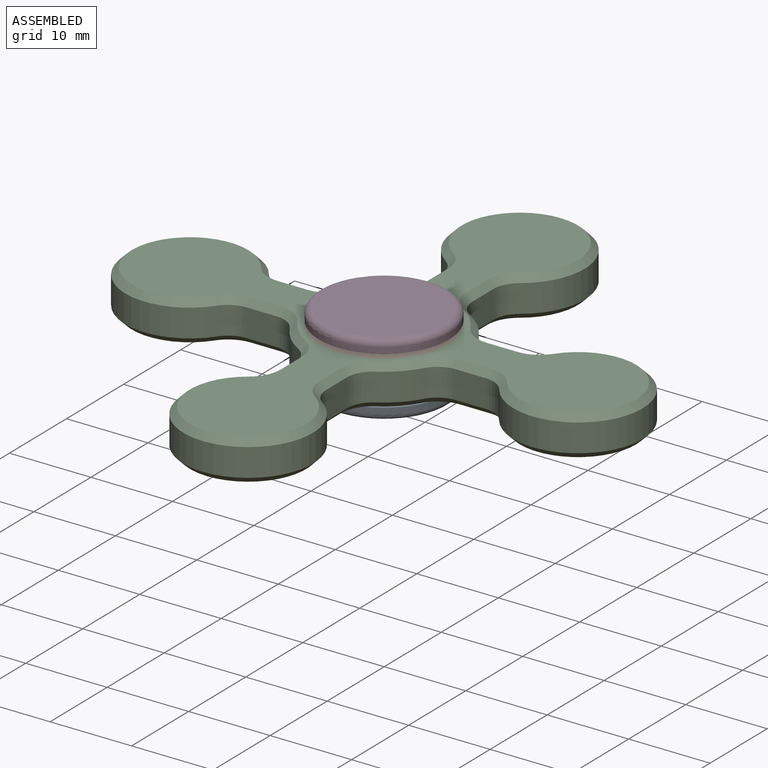
[diagram: assembled view]
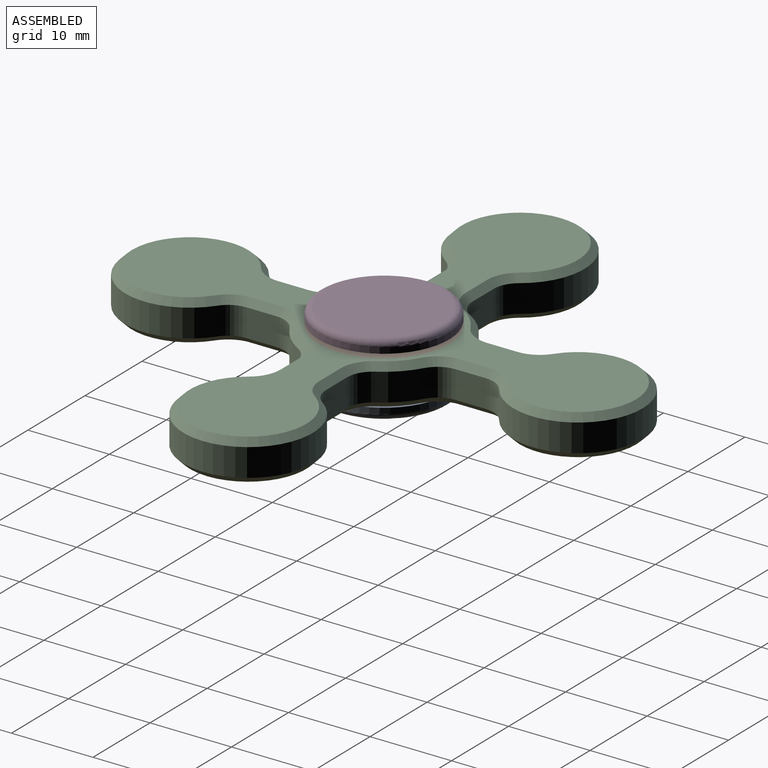
[diagram: assembled view, second angle]
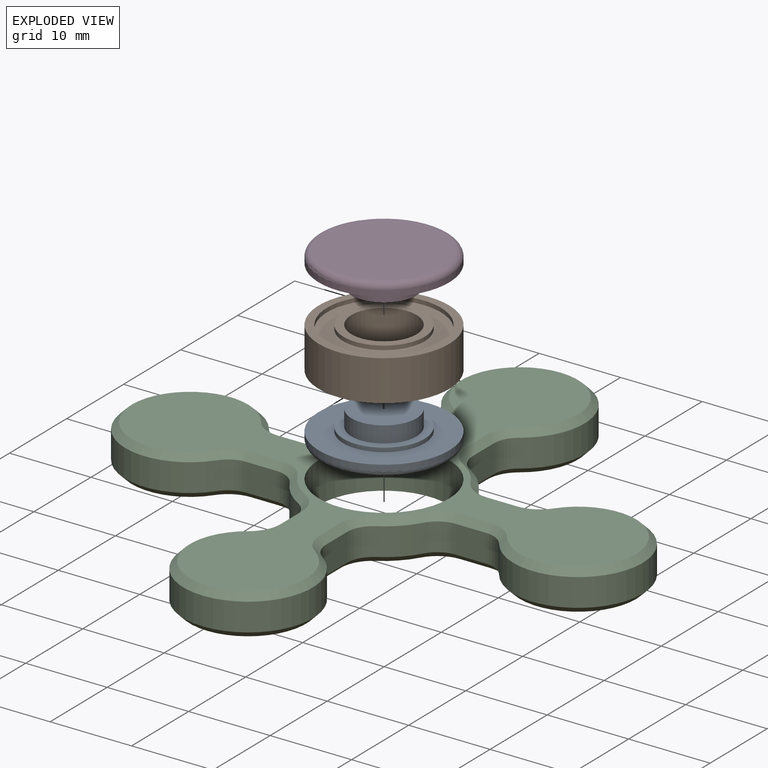
[diagram: exploded view]
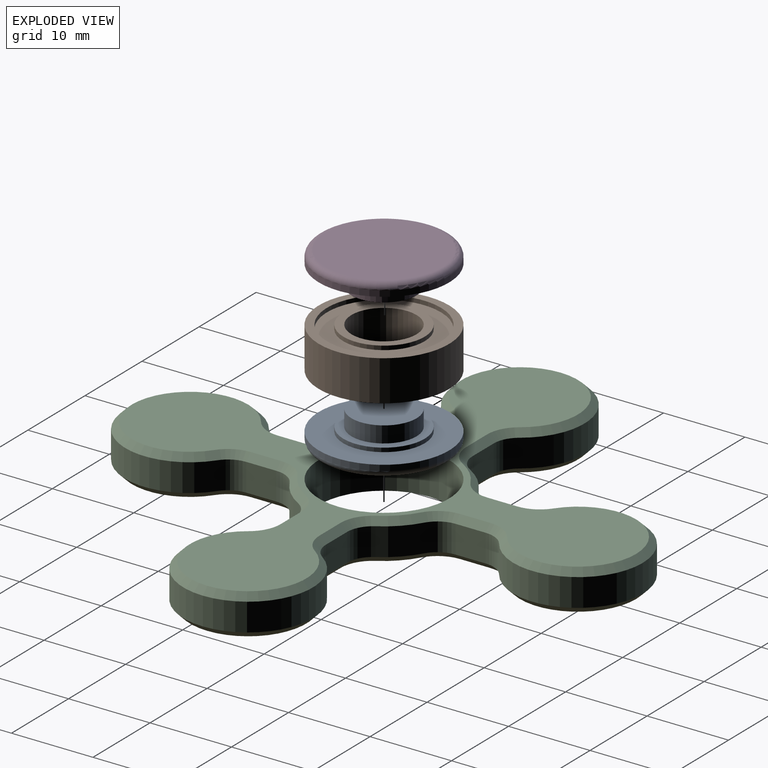
[diagram: exploded view, second angle]
ASSEMBLY  parts=4 mates=5
PART A: 8 faces, bbox 17.3x17.3x4 mm
  f0: plane 14.41x14.41mm, normal (0,0,1), area 163.1mm2, adj f7
  f1: plane 8x8mm, normal (0,0,-1), area 50.3mm2, adj f2
  f2: cylinder r=4mm len=8mm, axis (0,0,1), area 50.3mm2, adj f1,f3
  f3: plane 10x10mm, normal (0,0,-1), area 28.3mm2, adj f2,f4
  f4: cylinder r=5mm len=10mm, axis (0,0,1), area 15.7mm2, adj f3,f5
  f5: plane 16x16mm, normal (0,0,-1), area 122.5mm2, adj f4,f6
  f6: cylinder r=8mm len=16mm, axis (0,0,1), area 35.5mm2, adj f5,f7
  f7: torus R=7.21mm, axis (0,0,1), area 60.4mm2, adj f0,f6
PART B: 8 faces, bbox 16x16x5 mm
  f0: plane 10x10mm, normal (0,0,1), area 28.3mm2, adj f1,f5
  f1: cylinder r=4mm len=8mm, axis (0,0,-1), area 125.7mm2, adj f0,f4
  f2: cylinder r=8mm len=16mm, axis (0,0,-1), area 251.3mm2, adj f3,f4
  f3: plane 16x16mm, normal (0,0,1), area 47.1mm2, adj f2,f6
  f4: plane 16x16mm, normal (0,0,-1), area 150.8mm2, adj f1,f2
  f5: cylinder r=5mm len=10mm, axis (0,0,1), area 15.7mm2, adj f0,f7
  f6: cylinder r=7mm len=14mm, axis (0,0,1), area 22mm2, adj f3,f7
  f7: plane 14x14mm, normal (0,0,1), area 75.4mm2, adj f5,f6
PART C: 99 faces, bbox 63.5x63.5x5 mm
  f0: cylinder r=3.17mm len=3.41mm, axis (0,0,-1), area 11.3mm2, adj f1,f32,f60,f76
  f1: plane 3.69x3.41mm, normal (0,-1,0), area 12.6mm2, adj f0,f2,f62,f78
  f2: cylinder r=3.17mm len=3.41mm, axis (0,0,-1), area 10.4mm2, adj f1,f3,f64,f80
  f3: cylinder r=7.94mm len=15.88mm, axis (0,0,-1), area 137.2mm2, adj f2,f4,f66,f82
  f4: cylinder r=3.17mm len=3.41mm, axis (0,0,-1), area 10.4mm2, adj f3,f5,f65,f84
  f5: plane 3.69x3.41mm, normal (0,1,0), area 12.6mm2, adj f4,f6,f63,f86
  f6: cylinder r=3.17mm len=3.41mm, axis (0,0,-1), area 11.3mm2, adj f5,f7,f61,f88
  f7: cylinder r=9.53mm len=3.49mm, axis (0,0,-1), area 17mm2, adj f6,f8,f59,f90
  f8: cylinder r=3.17mm len=3.41mm, axis (0,0,-1), area 11.3mm2, adj f7,f9,f57,f92
  f9: plane 3.69x3.41mm, normal (1,0,0), area 12.6mm2, adj f8,f10,f55,f94
  f10: cylinder r=3.17mm len=3.41mm, axis (0,0,-1), area 10.4mm2, adj f9,f11,f53,f96
  f11: cylinder r=7.94mm len=15.88mm, axis (0,0,-1), area 137.2mm2, adj f10,f12,f51,f98
  f12: cylinder r=3.17mm len=3.41mm, axis (0,0,-1), area 10.4mm2, adj f11,f13,f49,f97
  f13: plane 3.69x3.41mm, normal (-1,0,0), area 12.6mm2, adj f12,f14,f47,f95
  f14: cylinder r=3.17mm len=3.41mm, axis (0,0,-1), area 11.3mm2, adj f13,f15,f45,f93
  f15: cylinder r=9.53mm len=3.49mm, axis (0,0,-1), area 17mm2, adj f14,f16,f43,f91
  f16: cylinder r=3.17mm len=3.41mm, axis (0,0,-1), area 11.3mm2, adj f15,f17,f41,f89
  f17: plane 3.69x3.41mm, normal (0,1,0), area 12.6mm2, adj f16,f18,f39,f87
  f18: cylinder r=3.17mm len=3.41mm, axis (0,0,-1), area 10.4mm2, adj f17,f19,f37,f85
  f19: cylinder r=7.94mm len=15.88mm, axis (0,0,-1), area 137.2mm2, adj f18,f20,f35,f83
  f20: cylinder r=3.17mm len=3.41mm, axis (0,0,-1), area 10.4mm2, adj f19,f21,f36,f81
  f21: plane 3.69x3.41mm, normal (0,-1,0), area 12.6mm2, adj f20,f22,f38,f79
  f22: cylinder r=3.17mm len=3.41mm, axis (0,0,-1), area 11.3mm2, adj f21,f23,f40,f77
  f23: cylinder r=9.53mm len=3.49mm, axis (0,0,-1), area 17mm2, adj f22,f24,f42,f75
  f24: cylinder r=3.17mm len=3.41mm, axis (0,0,-1), area 11.3mm2, adj f23,f25,f44,f73
  f25: plane 3.69x3.41mm, normal (-1,0,0), area 12.6mm2, adj f24,f26,f46,f71
  f26: cylinder r=3.17mm len=3.41mm, axis (0,0,-1), area 10.4mm2, adj f25,f27,f48,f69
  f27: cylinder r=7.94mm len=15.88mm, axis (0,0,-1), area 137.2mm2, adj f26,f28,f50,f67
  f28: cylinder r=3.17mm len=3.41mm, axis (0,0,-1), area 10.4mm2, adj f27,f29,f52,f68
  f29: plane 3.69x3.41mm, normal (1,0,0), area 12.6mm2, adj f28,f30,f54,f70
  f30: cylinder r=3.17mm len=3.41mm, axis (0,0,-1), area 11.3mm2, adj f29,f32,f56,f72
  f31: cylinder r=8mm len=16mm, axis (0,0,-1), area 251.3mm2, adj f33,f34
  f32: cylinder r=9.53mm len=3.49mm, axis (0,0,-1), area 17mm2, adj f0,f30,f58,f74
  f33: plane 61.91x61.91mm, normal (0,0,1), area 850.7mm2, adj f31,f67,f68,f69,f70,f71,f72,f73
  f34: plane 61.91x61.91mm, normal (0,0,-1), area 850.7mm2, adj f31,f35,f36,f37,f38,f39,f40,f41
  f35: cone r=7.94mm half-angle=45deg, axis (0,0,1), area 42.9mm2, adj f19,f34,f36,f37
  f36: cone r=3.97mm half-angle=45deg, axis (0,0,-1), area 3.9mm2, adj f20,f34,f35,f38
  f37: cone r=3.97mm half-angle=45deg, axis (0,0,-1), area 3.9mm2, adj f18,f34,f35,f39
  f38: plane 3.69x0.79mm, normal (0,-0.71,-0.71), area 4.1mm2, adj f21,f34,f36,f40
  f39: plane 3.69x0.79mm, normal (0,0.71,-0.71), area 4.1mm2, adj f17,f34,f37,f41
  f40: cone r=3.97mm half-angle=45deg, axis (0,0,-1), area 4.2mm2, adj f22,f34,f38,f42
  f41: cone r=3.97mm half-angle=45deg, axis (0,0,-1), area 4.2mm2, adj f16,f34,f39,f43
  f42: cone r=9.53mm half-angle=45deg, axis (0,0,1), area 5.4mm2, adj f23,f34,f40,f44
  f43: cone r=9.53mm half-angle=45deg, axis (0,0,1), area 5.4mm2, adj f15,f34,f41,f45
  f44: cone r=3.97mm half-angle=45deg, axis (0,0,-1), area 4.2mm2, adj f24,f34,f42,f46
  f45: cone r=3.97mm half-angle=45deg, axis (0,0,-1), area 4.2mm2, adj f14,f34,f43,f47
  f46: plane 3.69x0.79mm, normal (-0.71,0,-0.71), area 4.1mm2, adj f25,f34,f44,f48
  f47: plane 3.69x0.79mm, normal (-0.71,0,-0.71), area 4.1mm2, adj f13,f34,f45,f49
  f48: cone r=3.97mm half-angle=45deg, axis (0,0,-1), area 3.9mm2, adj f26,f34,f46,f50
  f49: cone r=3.97mm half-angle=45deg, axis (0,0,-1), area 3.9mm2, adj f12,f34,f47,f51
  f50: cone r=7.94mm half-angle=45deg, axis (0,0,1), area 42.9mm2, adj f27,f34,f48,f52
  f51: cone r=7.94mm half-angle=45deg, axis (0,0,1), area 42.9mm2, adj f11,f34,f49,f53
  f52: cone r=3.97mm half-angle=45deg, axis (0,0,-1), area 3.9mm2, adj f28,f34,f50,f54
  f53: cone r=3.97mm half-angle=45deg, axis (0,0,-1), area 3.9mm2, adj f10,f34,f51,f55
  f54: plane 3.69x0.79mm, normal (0.71,0,-0.71), area 4.1mm2, adj f29,f34,f52,f56
  f55: plane 3.69x0.79mm, normal (0.71,0,-0.71), area 4.1mm2, adj f9,f34,f53,f57
  f56: cone r=3.97mm half-angle=45deg, axis (0,0,-1), area 4.2mm2, adj f30,f34,f54,f58
  f57: cone r=3.97mm half-angle=45deg, axis (0,0,-1), area 4.2mm2, adj f8,f34,f55,f59
  f58: cone r=9.53mm half-angle=45deg, axis (0,0,1), area 5.4mm2, adj f32,f34,f56,f60
  f59: cone r=9.53mm half-angle=45deg, axis (0,0,1), area 5.4mm2, adj f7,f34,f57,f61
  f60: cone r=3.97mm half-angle=45deg, axis (0,0,-1), area 4.2mm2, adj f0,f34,f58,f62
  f61: cone r=3.97mm half-angle=45deg, axis (0,0,-1), area 4.2mm2, adj f6,f34,f59,f63
  f62: plane 3.69x0.79mm, normal (0,-0.71,-0.71), area 4.1mm2, adj f1,f34,f60,f64
  f63: plane 3.69x0.79mm, normal (0,0.71,-0.71), area 4.1mm2, adj f5,f34,f61,f65
  f64: cone r=3.97mm half-angle=45deg, axis (0,0,-1), area 3.9mm2, adj f2,f34,f62,f66
  f65: cone r=3.97mm half-angle=45deg, axis (0,0,-1), area 3.9mm2, adj f4,f34,f63,f66
  f66: cone r=7.94mm half-angle=45deg, axis (0,0,1), area 42.9mm2, adj f3,f34,f64,f65
  f67: cone r=7.14mm half-angle=45deg, axis (0,0,-1), area 42.9mm2, adj f27,f33,f68,f69
  f68: cone r=3.17mm half-angle=45deg, axis (0,0,1), area 3.9mm2, adj f28,f33,f67,f70
  f69: cone r=3.17mm half-angle=45deg, axis (0,0,1), area 3.9mm2, adj f26,f33,f67,f71
  f70: plane 3.69x0.79mm, normal (0.71,0,0.71), area 4.1mm2, adj f29,f33,f68,f72
  f71: plane 3.69x0.79mm, normal (-0.71,0,0.71), area 4.1mm2, adj f25,f33,f69,f73
  f72: cone r=3.17mm half-angle=45deg, axis (0,0,1), area 4.2mm2, adj f30,f33,f70,f74
  f73: cone r=3.17mm half-angle=45deg, axis (0,0,1), area 4.2mm2, adj f24,f33,f71,f75
  f74: cone r=8.73mm half-angle=45deg, axis (0,0,-1), area 5.4mm2, adj f32,f33,f72,f76
  f75: cone r=8.73mm half-angle=45deg, axis (0,0,-1), area 5.4mm2, adj f23,f33,f73,f77
  f76: cone r=3.17mm half-angle=45deg, axis (0,0,1), area 4.2mm2, adj f0,f33,f74,f78
  f77: cone r=3.17mm half-angle=45deg, axis (0,0,1), area 4.2mm2, adj f22,f33,f75,f79
  f78: plane 3.69x0.79mm, normal (0,-0.71,0.71), area 4.1mm2, adj f1,f33,f76,f80
  f79: plane 3.69x0.79mm, normal (0,-0.71,0.71), area 4.1mm2, adj f21,f33,f77,f81
  f80: cone r=3.17mm half-angle=45deg, axis (0,0,1), area 3.9mm2, adj f2,f33,f78,f82
  f81: cone r=3.17mm half-angle=45deg, axis (0,0,1), area 3.9mm2, adj f20,f33,f79,f83
  f82: cone r=7.14mm half-angle=45deg, axis (0,0,-1), area 42.9mm2, adj f3,f33,f80,f84
  f83: cone r=7.14mm half-angle=45deg, axis (0,0,-1), area 42.9mm2, adj f19,f33,f81,f85
  f84: cone r=3.17mm half-angle=45deg, axis (0,0,1), area 3.9mm2, adj f4,f33,f82,f86
  f85: cone r=3.17mm half-angle=45deg, axis (0,0,1), area 3.9mm2, adj f18,f33,f83,f87
  f86: plane 3.69x0.79mm, normal (0,0.71,0.71), area 4.1mm2, adj f5,f33,f84,f88
  f87: plane 3.69x0.79mm, normal (0,0.71,0.71), area 4.1mm2, adj f17,f33,f85,f89
  f88: cone r=3.17mm half-angle=45deg, axis (0,0,1), area 4.2mm2, adj f6,f33,f86,f90
  f89: cone r=3.17mm half-angle=45deg, axis (0,0,1), area 4.2mm2, adj f16,f33,f87,f91
  f90: cone r=8.73mm half-angle=45deg, axis (0,0,-1), area 5.4mm2, adj f7,f33,f88,f92
  f91: cone r=8.73mm half-angle=45deg, axis (0,0,-1), area 5.4mm2, adj f15,f33,f89,f93
  f92: cone r=3.17mm half-angle=45deg, axis (0,0,1), area 4.2mm2, adj f8,f33,f90,f94
  f93: cone r=3.17mm half-angle=45deg, axis (0,0,1), area 4.2mm2, adj f14,f33,f91,f95
  f94: plane 3.69x0.79mm, normal (0.71,0,0.71), area 4.1mm2, adj f9,f33,f92,f96
  f95: plane 3.69x0.79mm, normal (-0.71,0,0.71), area 4.1mm2, adj f13,f33,f93,f97
  f96: cone r=3.17mm half-angle=45deg, axis (0,0,1), area 3.9mm2, adj f10,f33,f94,f98
  f97: cone r=3.17mm half-angle=45deg, axis (0,0,1), area 3.9mm2, adj f12,f33,f95,f98
  f98: cone r=7.14mm half-angle=45deg, axis (0,0,-1), area 42.9mm2, adj f11,f33,f96,f97
PART D: same geometry as A
PLACE A rot(axis=(0.72,-0.7,0),180deg) t=(-3.04,-1.41,0.01)mm
PLACE B rot(axis=(0,0,-1),88.1deg) t=(-3.04,-1.41,-1.99)mm
PLACE C t=(-3.04,-1.41,-1.99)mm fixed
PLACE D rot(axis=(0,0,1),91.9deg) t=(-3.04,-1.41,1.01)mm
MATE planar D.f2 <-> B.f1  axis (0,0,-1) through (-3.04,-1.41,3.01)mm
MATE revolute B.f1 <-> C.f7  axis (0,0,-1) through (-3.04,-1.41,0.51)mm
MATE cylindrical D.f2 <-> B.f1  axis (0,0,1) through (-3.04,-1.41,2.01)mm
MATE planar A.f2 <-> B.f1  axis (0,0,1) through (-3.04,-1.41,-1.99)mm
MATE cylindrical A.f2 <-> B.f1  axis (0,0,-1) through (-3.04,-1.41,-0.99)mm
